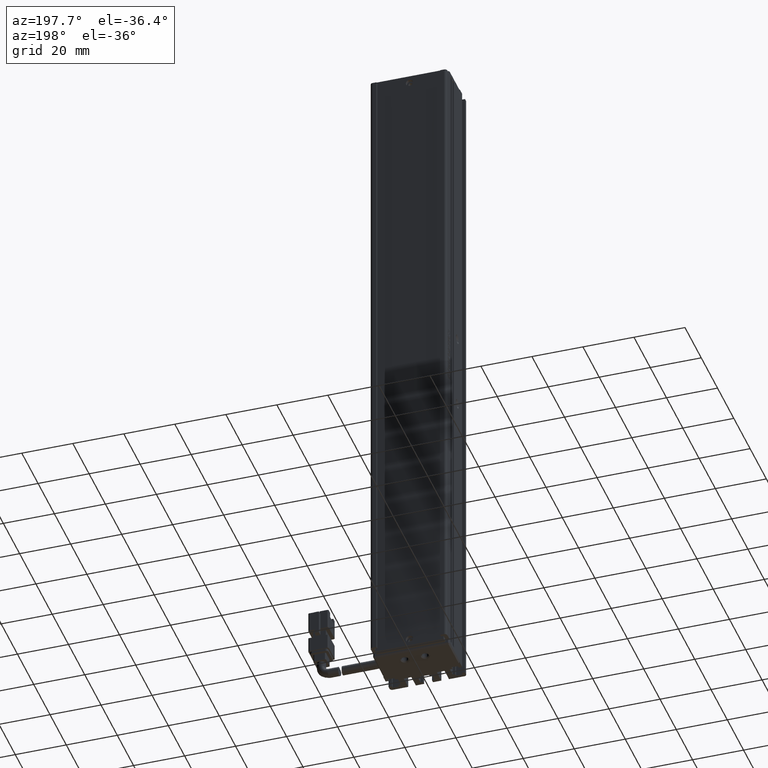
[diagram: clean part render]
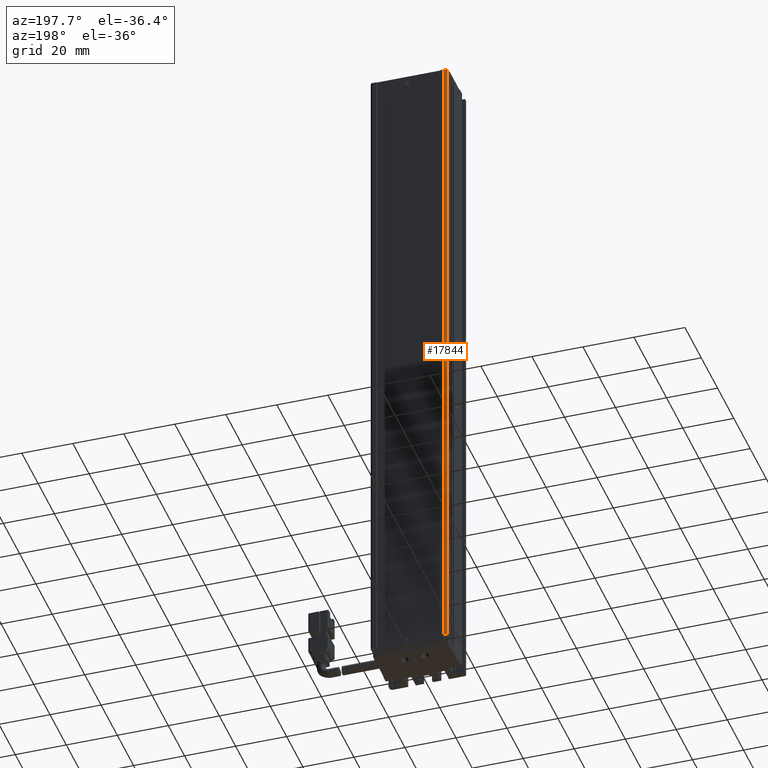
[diagram: same view with one face highlighted and labeled with its STEP entity id]
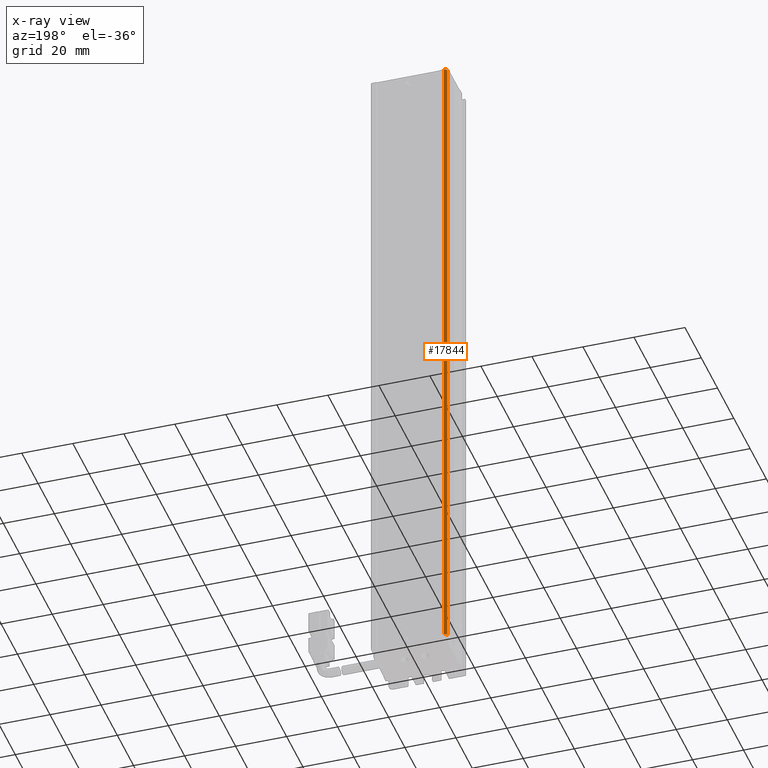
[diagram: x-ray of the same camera — body ghosted, the highlighted face saturated]
A machine part, auxiliary view. The second image highlights one B-rep face of the part: STEP entity #17844.
The next image is the same camera in x-ray: the body ghosted, the highlighted face saturated — about 0% of this face is hidden behind the body in this view.
In plain terms, the highlighted cylindrical surface (edge-blend (fillet) strip) has radius 1 mm, axis along (-0, -0, -1).
Its self-contained STEP definition (entity closure, byte-faithful):
#3062 = CIRCLE ( 'NONE', #7028, 0.9999999999999974500 ) ;
#3804 = DIRECTION ( 'NONE',  ( -0.0000000000000000000, -0.0000000000000000000, -1.000000000000000000 ) ) ;
#4205 = CARTESIAN_POINT ( 'NONE',  ( 25.92537974683541800, 34.69594479660387500, 18.00000000000000400 ) ) ;
#5641 = CARTESIAN_POINT ( 'NONE',  ( 25.92537974683541800, 34.69594479660387500, 16.00000000000000000 ) ) ;
#7028 = AXIS2_PLACEMENT_3D ( 'NONE', #45925, #20334, #50253 ) ;
#7991 = CARTESIAN_POINT ( 'NONE',  ( 25.92537974683541800, 34.69594479660387500, -246.0000000000000000 ) ) ;
#9855 = ORIENTED_EDGE ( 'NONE', *, *, #50030, .F. ) ;
#12651 = AXIS2_PLACEMENT_3D ( 'NONE', #46480, #3804, #21062 ) ;
#15474 = CIRCLE ( 'NONE', #39834, 0.9999999999999974500 ) ;
#15893 = DIRECTION ( 'NONE',  ( -0.0000000000000000000, -0.0000000000000000000, -1.000000000000000000 ) ) ;
#16029 = CARTESIAN_POINT ( 'NONE',  ( 26.92537974683542100, 35.69594479660387500, -246.0000000000000000 ) ) ;
#17366 = VERTEX_POINT ( 'NONE', #5641 ) ;
#17844 = ADVANCED_FACE ( 'NONE', ( #26544 ), #21208, .T. ) ;
#20334 = DIRECTION ( 'NONE',  ( 0.0000000000000000000, 0.0000000000000000000, 1.000000000000000000 ) ) ;
#21062 = DIRECTION ( 'NONE',  ( -1.000000000000000000, 0.0000000000000000000, 0.0000000000000000000 ) ) ;
#21208 = CYLINDRICAL_SURFACE ( 'NONE', #12651, 0.9999999999999974500 ) ;
#23010 = EDGE_CURVE ( 'NONE', #42876, #53251, #25367, .T. ) ;
#24489 = DIRECTION ( 'NONE',  ( -0.0000000000000000000, -0.0000000000000000000, -1.000000000000000000 ) ) ;
#25367 = LINE ( 'NONE', #41521, #48164 ) ;
#26227 = VERTEX_POINT ( 'NONE', #7991 ) ;
#26544 = FACE_OUTER_BOUND ( 'NONE', #34644, .T. ) ;
#29833 = DIRECTION ( 'NONE',  ( -0.0000000000000000000, -0.0000000000000000000, -1.000000000000000000 ) ) ;
#31798 = VECTOR ( 'NONE', #29833, 1000.000000000000000 ) ;
#32740 = ORIENTED_EDGE ( 'NONE', *, *, #41505, .T. ) ;
#34288 = CARTESIAN_POINT ( 'NONE',  ( 26.92537974683542100, 35.69594479660387500, 16.00000000000000000 ) ) ;
#34644 = EDGE_LOOP ( 'NONE', ( #46700, #9855, #32740, #55468 ) ) ;
#39834 = AXIS2_PLACEMENT_3D ( 'NONE', #50151, #24489, #54446 ) ;
#41505 = EDGE_CURVE ( 'NONE', #17366, #42876, #15474, .T. ) ;
#41521 = CARTESIAN_POINT ( 'NONE',  ( 26.92537974683542100, 35.69594479660387500, 18.00000000000000400 ) ) ;
#42876 = VERTEX_POINT ( 'NONE', #34288 ) ;
#43207 = LINE ( 'NONE', #4205, #31798 ) ;
#45925 = CARTESIAN_POINT ( 'NONE',  ( 26.92537974683542100, 34.69594479660387500, -246.0000000000000000 ) ) ;
#46480 = CARTESIAN_POINT ( 'NONE',  ( 26.92537974683542100, 34.69594479660387500, 18.00000000000000400 ) ) ;
#46700 = ORIENTED_EDGE ( 'NONE', *, *, #53218, .T. ) ;
#48164 = VECTOR ( 'NONE', #15893, 1000.000000000000000 ) ;
#50030 = EDGE_CURVE ( 'NONE', #17366, #26227, #43207, .T. ) ;
#50151 = CARTESIAN_POINT ( 'NONE',  ( 26.92537974683542100, 34.69594479660387500, 16.00000000000000000 ) ) ;
#50253 = DIRECTION ( 'NONE',  ( -1.000000000000000000, 0.0000000000000000000, 0.0000000000000000000 ) ) ;
#53218 = EDGE_CURVE ( 'NONE', #53251, #26227, #3062, .T. ) ;
#53251 = VERTEX_POINT ( 'NONE', #16029 ) ;
#54446 = DIRECTION ( 'NONE',  ( -1.000000000000000000, 0.0000000000000000000, 0.0000000000000000000 ) ) ;
#55468 = ORIENTED_EDGE ( 'NONE', *, *, #23010, .T. ) ;